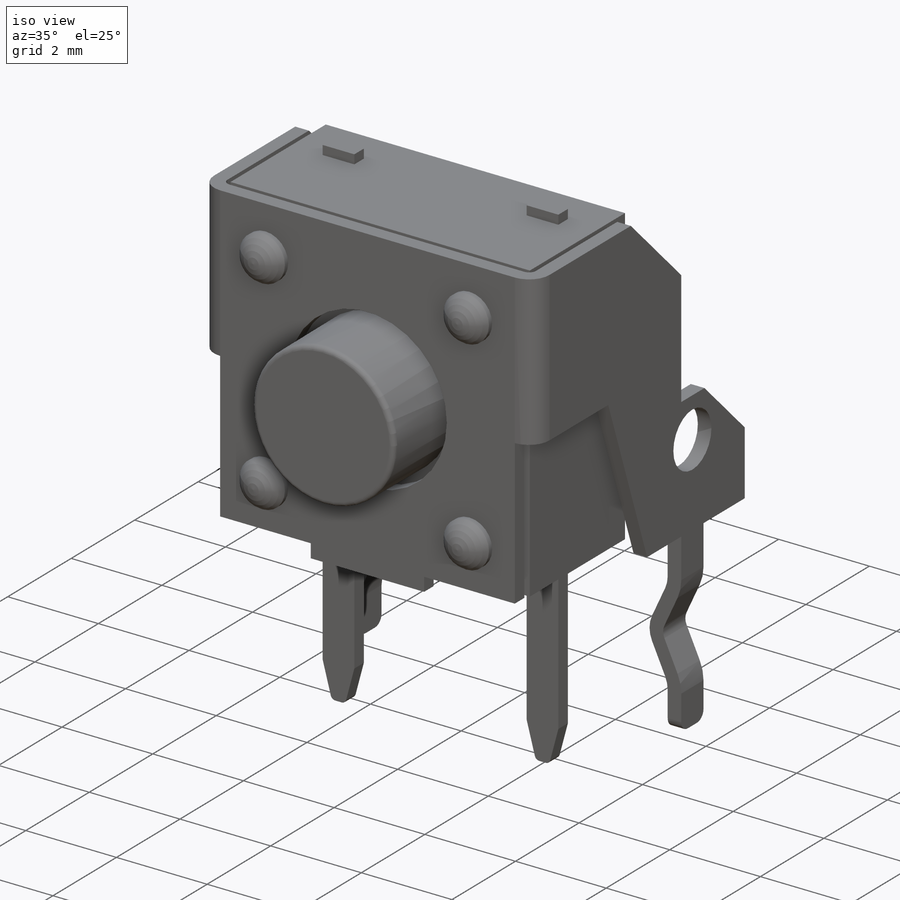
[diagram: iso view]
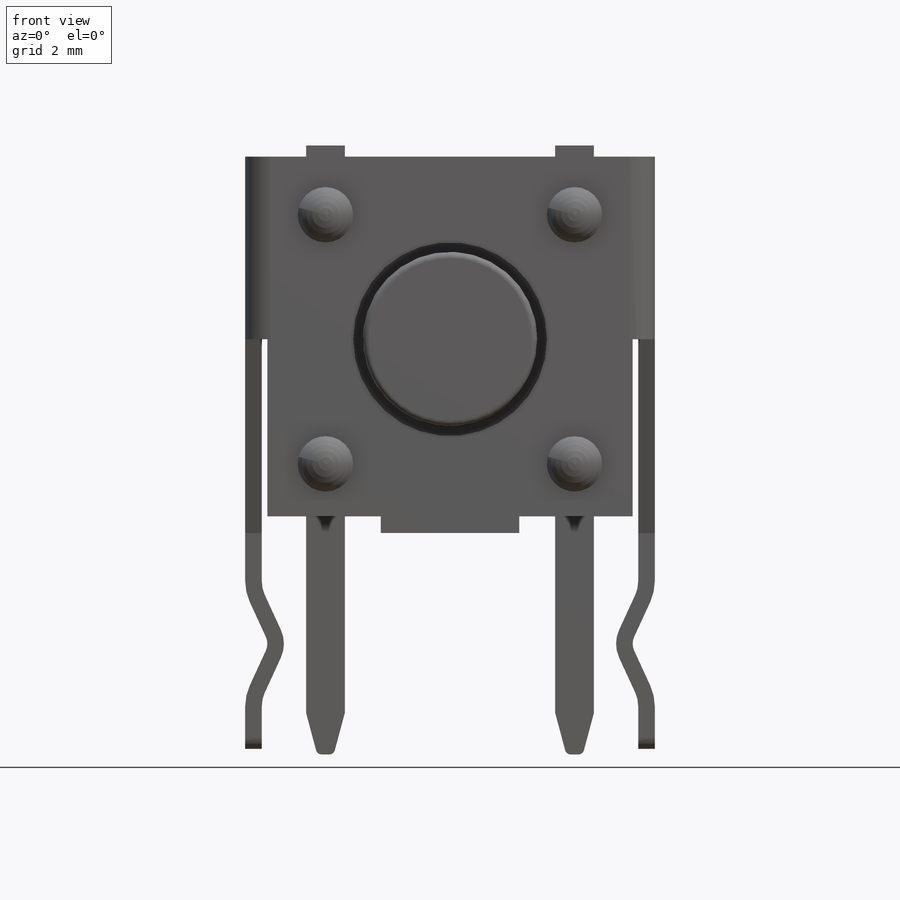
[diagram: front view]
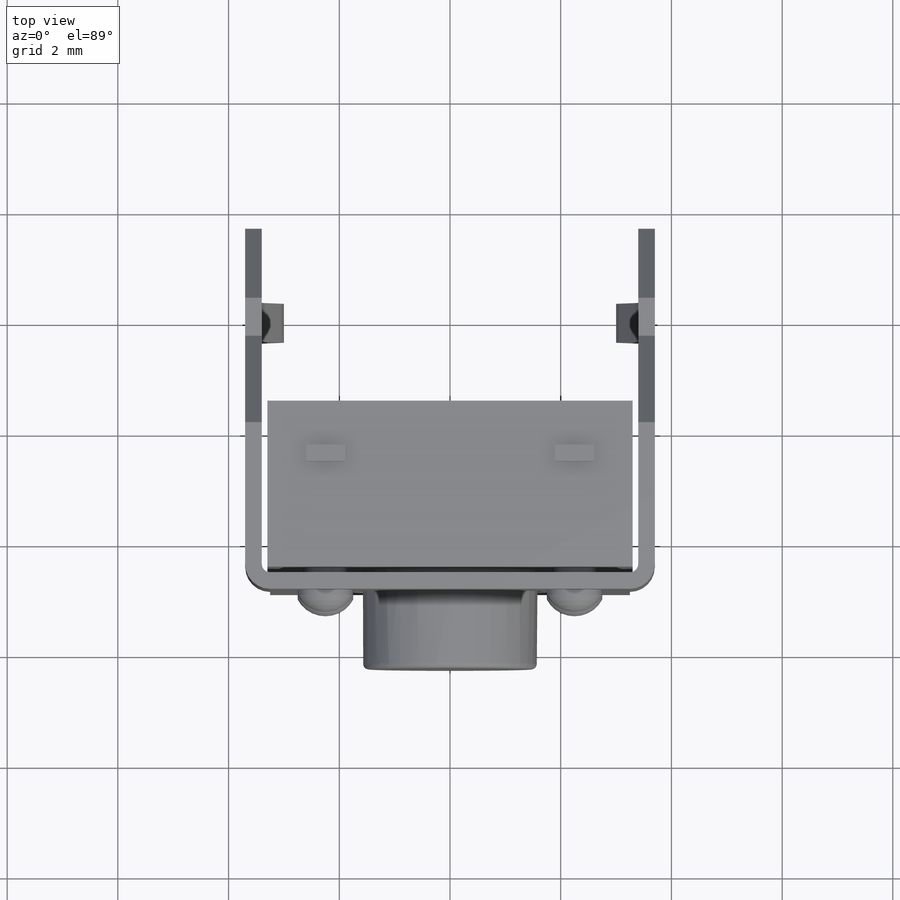
[diagram: top view]
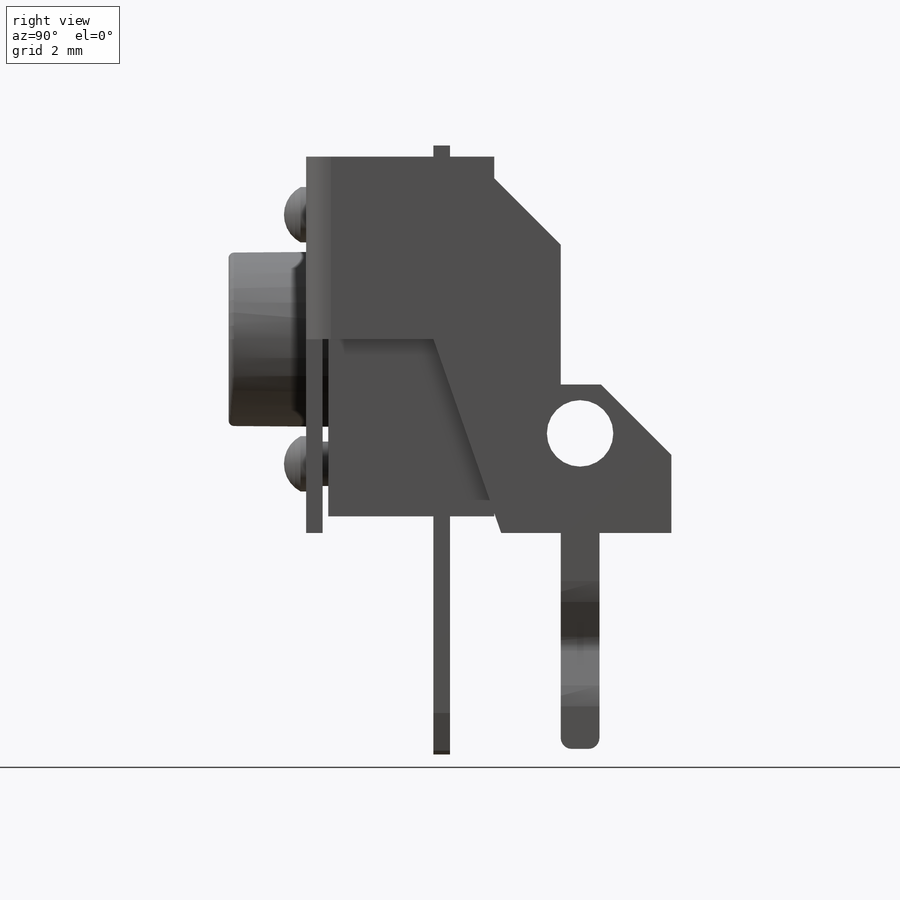
[diagram: right view]
SOLIDWORKS PART (.sldprt)
format: sldprt  version: not decoded by parser v0  size: 619,520 bytes
history: native  units: mm
features: sketch x9, extrude x5, plane x3, fillet x3, cut_extrude x2, mirror x2, move_body x2, material x1, dome x1, pattern_linear x1 (+12 scaffold rows collapsed)
feature tree (41):
  scaffold x12  (default folders/planes/origin — collapsed)
  material  "Nickel"
  plane  "Plane1"  Offset=2mm
  sketch  "Sketch1"  dims[c1.D4=0.45mm c1.D1=6.6mm c1.D2=7.4mm c1.D3=4.95mm c2.D1=6.8mm c2.D5=0.3mm c2.D6=1.0mm c2.D7=5.0mm]
  sketch  "Sketch2"  dims[c1.D5=1.2mm c1.D1=3.5mm c1.D2=2.0mm c1.D3=3.225mm c1.D4=~1.220109mm c2.D4=45.0deg c2.D5=~1.257766mm c3.D5=45.0deg c3.D6=1.8mm c3.D7=2.0mm c3.D8=~2.682212mm]
  cut_extrude  "Cut-Extrude1"  [1 undecoded]
  sketch  "Sketch3"  dims[c1.D2=3.5mm c1.D1=0.45mm c2.D2=~0.555694mm c2.D3=2.0mm c2.D4=0.3mm]
  cut_extrude  "Cut-Extrude2"  [1 undecoded]
  sketch  "Sketch5"  dims[c1.D5=0.6mm c1.D1=2.0mm c1.D2=3.9mm c1.D3=3.0mm c1.D4=2.0mm c2.D3=3.0mm c2.D1=0.7mm c2.D5=0.3mm c2.D6=1.0mm c2.D7=5.0mm]
  fillet  "Fillet1"  Radius=0.2mm
  sketch  "Sketch6"  dims[D1=4.5mm D2=4.5mm D3=2.25mm D4=2.25mm]
  extrude  "Extrude1"  Depth=0.1mm
  dome  "Dome1"
  pattern_linear  "LPattern1"  Count1=2 Count2=2 Spacing1=4.5mm Spacing2=4.5mm
  sketch  "Sketch7"  dims[D1=0.1mm D2=0.1mm D3=0.1mm D4=3.0mm]
  extrude  "Extrude2"  [1 undecoded]
  plane  "Plane2"  Offset=0.7mm
  sketch  "Sketch8"  dims[D1=3.2mm]
  extrude  "Extrude3"  Depth=3.85mm
  fillet  "Fillet2"  Radius=0.1mm
  plane  "Plane3"  Offset=2.45mm
  sketch  "Sketch9"  dims[c1.D1=2.25mm c1.D2=0.7mm c1.D3=~0.764711mm c2.D3=75.0deg c2.D4=~0.20034mm c3.D4=75.0deg c3.D5=0.75mm c3.D6=0.1mm c3.D1=2.25mm c3.D7=0.2mm]
  extrude  "Extrude4"  Depth=0.3mm
  fillet  "Fillet3"  Radius=0.1mm
  mirror  "Mirror1"
  mirror  "Mirror2"
  sketch  "Sketch10"  dims[D1=0.1mm D2=0.1mm D3=0.1mm D4=0.1mm]
  extrude  "Extrude5"  [1 undecoded]
  move_body  "Body-Move/Copy1"
  move_body  "Body-Move/Copy2"
decode coverage: 16 of 25 modeling features carry decoded parameters
note: ~ marks probable driven/reference dimensions
note: 4 parameter values undecoded
summary: no parameter record found for 4 features
note: suppression state not decoded; provenance and decode notes live in map.json
